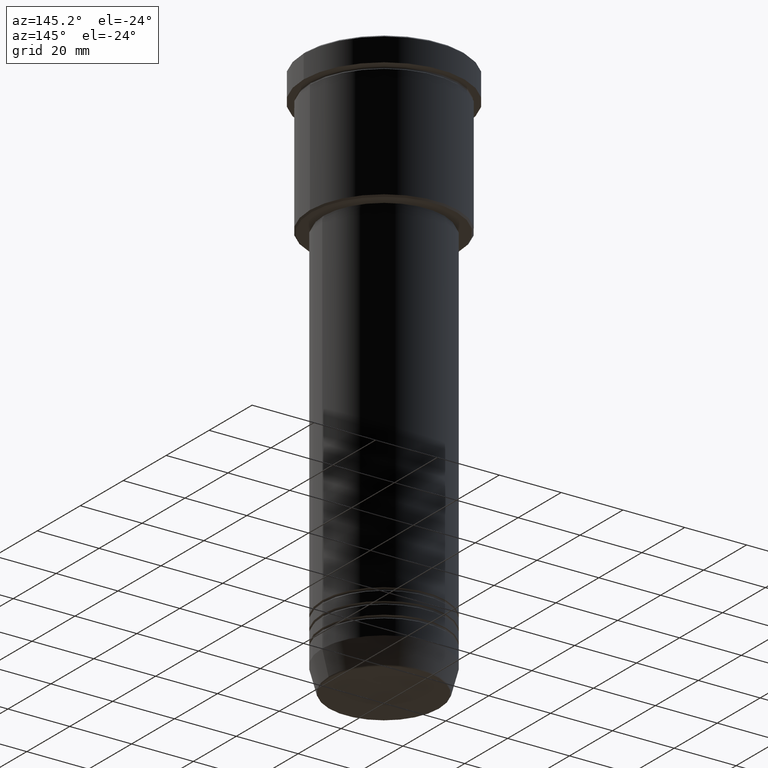
[diagram: clean part render]
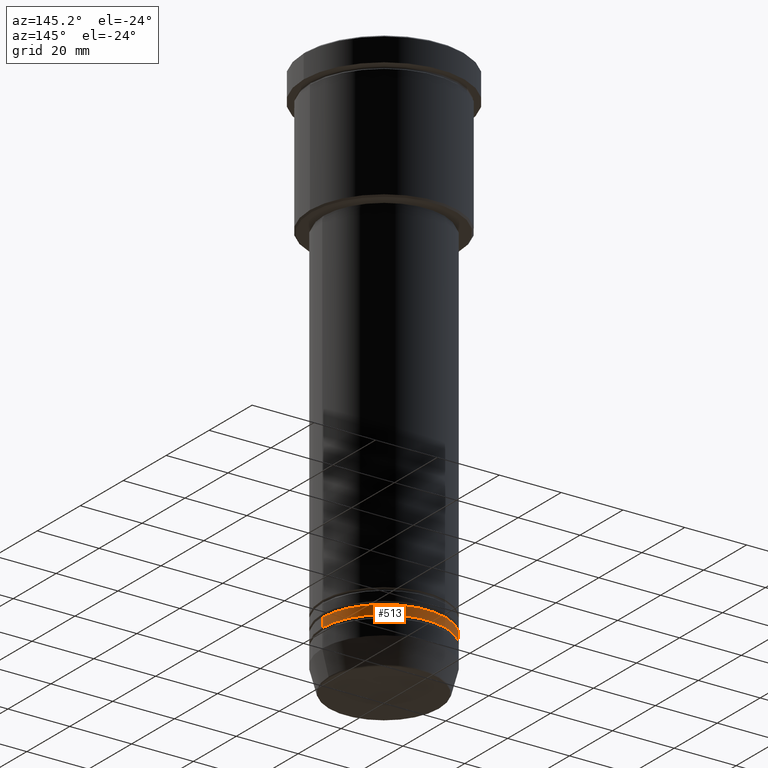
[diagram: same view with one face highlighted and labeled with its STEP entity id]
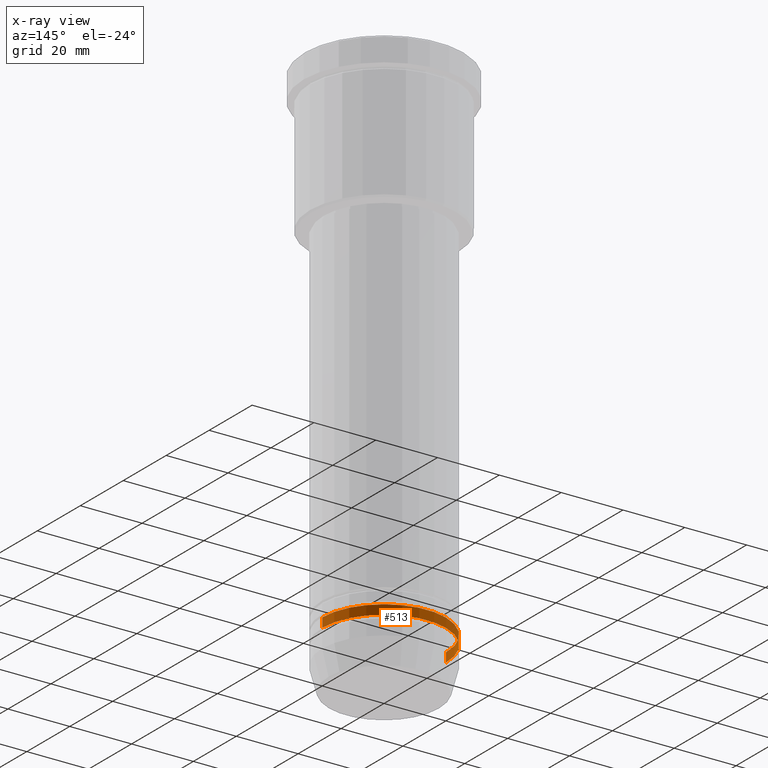
[diagram: x-ray of the same camera — body ghosted, the highlighted face saturated]
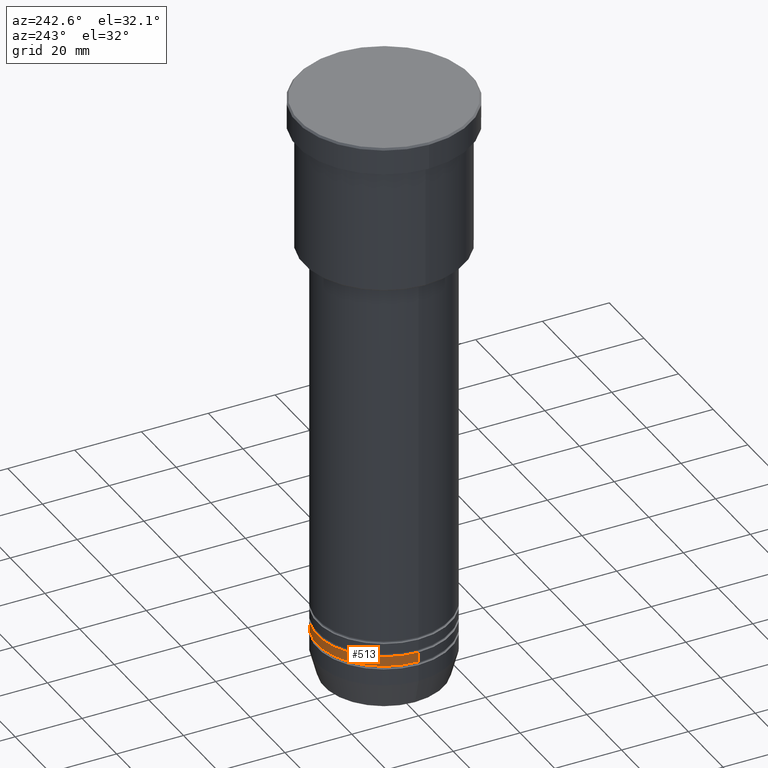
[diagram: same view with one face highlighted and labeled with its STEP entity id]
A machine part, auxiliary view. The second image highlights one B-rep face of the part: STEP entity #513.
The next image is the same camera in x-ray: the body ghosted, the highlighted face saturated — about 1% of this face is hidden behind the body in this view.
A second angle (auxiliary view) of the same face is appended — the face is thin or edge-on in the first view.
In plain terms, the highlighted cylindrical surface (partial cylindrical patch) has radius 20 mm, axis along (-0, -0, 1).
Its self-contained STEP definition (entity closure, byte-faithful):
#12 = VECTOR ( 'NONE', #344, 1000.000000000000000 ) ;
#34 = ORIENTED_EDGE ( 'NONE', *, *, #965, .F. ) ;
#37 = CYLINDRICAL_SURFACE ( 'NONE', #171, 20.00000000000000355 ) ;
#57 = LINE ( 'NONE', #420, #12 ) ;
#85 = CARTESIAN_POINT ( 'NONE',  ( 20.00000000000000000, 0.000000000000000000, -163.0000000000000000 ) ) ;
#91 = AXIS2_PLACEMENT_3D ( 'NONE', #1159, #179, #539 ) ;
#146 = CIRCLE ( 'NONE', #91, 20.00000000000000000 ) ;
#149 = FACE_OUTER_BOUND ( 'NONE', #475, .T. ) ;
#171 = AXIS2_PLACEMENT_3D ( 'NONE', #976, #962, #874 ) ;
#179 = DIRECTION ( 'NONE',  ( -0.000000000000000000, -0.000000000000000000, 1.000000000000000000 ) ) ;
#241 = ORIENTED_EDGE ( 'NONE', *, *, #950, .T. ) ;
#344 = DIRECTION ( 'NONE',  ( -0.000000000000000000, -0.000000000000000000, 1.000000000000000000 ) ) ;
#351 = CARTESIAN_POINT ( 'NONE',  ( -20.00000000000000355, 2.449293598294706907E-15, 0.000000000000000000 ) ) ;
#383 = VERTEX_POINT ( 'NONE', #917 ) ;
#420 = CARTESIAN_POINT ( 'NONE',  ( 20.00000000000000355, 0.000000000000000000, 0.000000000000000000 ) ) ;
#423 = CARTESIAN_POINT ( 'NONE',  ( -20.00000000000000355, 2.449293598294706907E-15, -165.9999999999999716 ) ) ;
#436 = DIRECTION ( 'NONE',  ( -0.000000000000000000, -0.000000000000000000, 1.000000000000000000 ) ) ;
#475 = EDGE_LOOP ( 'NONE', ( #241, #736, #818, #34 ) ) ;
#513 = ADVANCED_FACE ( 'NONE', ( #149 ), #37, .T. ) ;
#531 = CARTESIAN_POINT ( 'NONE',  ( 20.00000000000000355, 0.000000000000000000, -165.9999999999999716 ) ) ;
#535 = AXIS2_PLACEMENT_3D ( 'NONE', #883, #436, #804 ) ;
#539 = DIRECTION ( 'NONE',  ( 1.000000000000000000, 0.000000000000000000, 0.000000000000000000 ) ) ;
#585 = VERTEX_POINT ( 'NONE', #85 ) ;
#671 = EDGE_CURVE ( 'NONE', #1166, #383, #809, .T. ) ;
#673 = VECTOR ( 'NONE', #716, 1000.000000000000000 ) ;
#675 = EDGE_CURVE ( 'NONE', #585, #383, #146, .T. ) ;
#681 = VERTEX_POINT ( 'NONE', #531 ) ;
#688 = CIRCLE ( 'NONE', #535, 20.00000000000000355 ) ;
#716 = DIRECTION ( 'NONE',  ( -0.000000000000000000, -0.000000000000000000, 1.000000000000000000 ) ) ;
#736 = ORIENTED_EDGE ( 'NONE', *, *, #671, .T. ) ;
#804 = DIRECTION ( 'NONE',  ( 1.000000000000000000, 0.000000000000000000, 0.000000000000000000 ) ) ;
#809 = LINE ( 'NONE', #351, #673 ) ;
#818 = ORIENTED_EDGE ( 'NONE', *, *, #675, .F. ) ;
#874 = DIRECTION ( 'NONE',  ( 1.000000000000000000, 0.000000000000000000, 0.000000000000000000 ) ) ;
#883 = CARTESIAN_POINT ( 'NONE',  ( 0.000000000000000000, 0.000000000000000000, -165.9999999999999716 ) ) ;
#917 = CARTESIAN_POINT ( 'NONE',  ( -20.00000000000000000, 2.449293598294706513E-15, -163.0000000000000000 ) ) ;
#950 = EDGE_CURVE ( 'NONE', #681, #1166, #688, .T. ) ;
#962 = DIRECTION ( 'NONE',  ( -0.000000000000000000, -0.000000000000000000, 1.000000000000000000 ) ) ;
#965 = EDGE_CURVE ( 'NONE', #681, #585, #57, .T. ) ;
#976 = CARTESIAN_POINT ( 'NONE',  ( 0.000000000000000000, 0.000000000000000000, 0.000000000000000000 ) ) ;
#1159 = CARTESIAN_POINT ( 'NONE',  ( 0.000000000000000000, 0.000000000000000000, -163.0000000000000000 ) ) ;
#1166 = VERTEX_POINT ( 'NONE', #423 ) ;